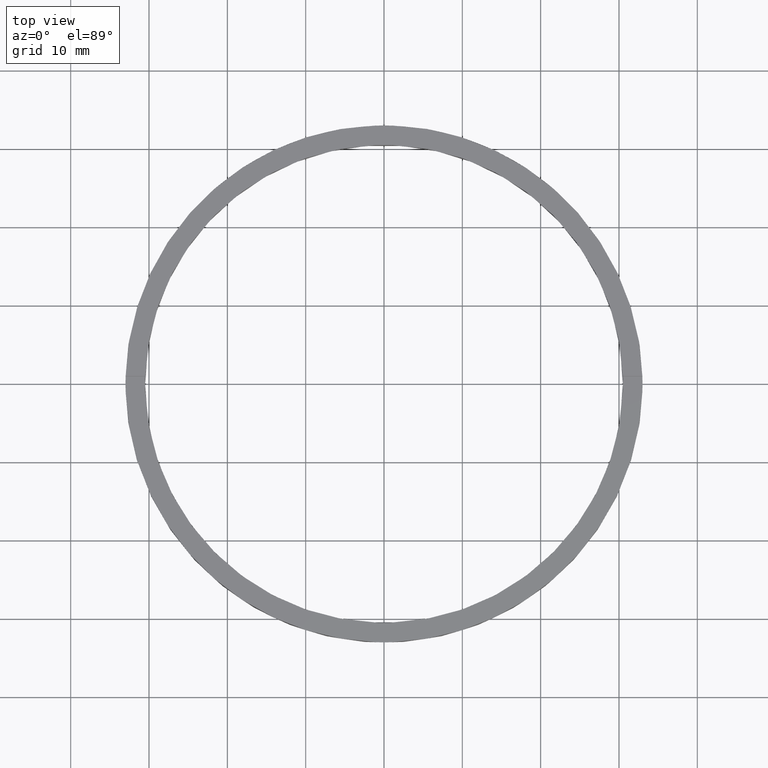
[diagram: clean part render]
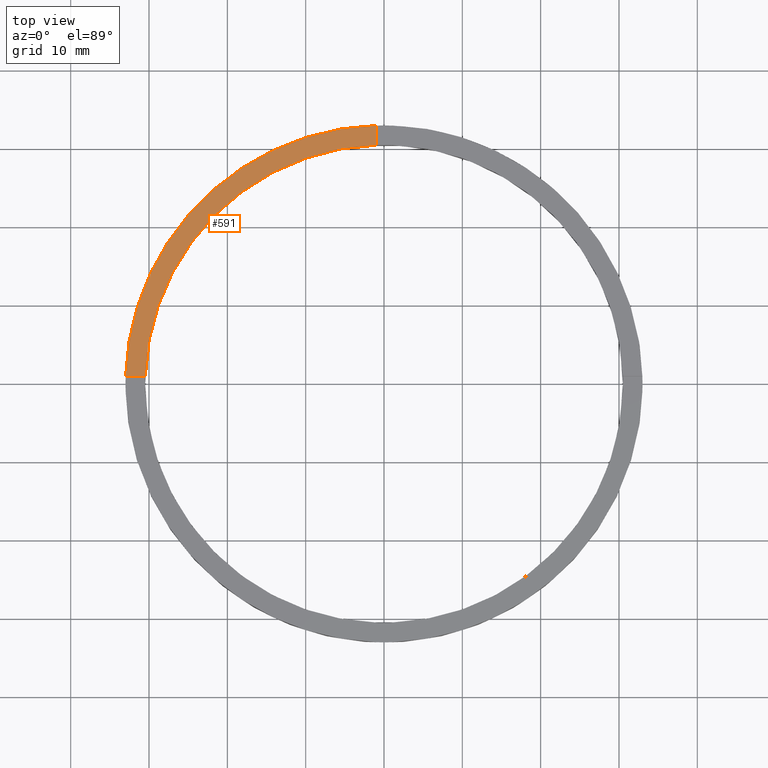
[diagram: same view with one face highlighted and labeled with its STEP entity id]
A machine part, top view. The second image highlights one B-rep face of the part: STEP entity #591.
In plain terms, the highlighted planar face has unit normal (0, 0, 1).
Its self-contained STEP definition (entity closure, byte-faithful):
#13 = CARTESIAN_POINT ( 'NONE',  ( -1.000000000000024647, 32.98484500494128469, 3.000000000000000000 ) ) ;
#19 = ORIENTED_EDGE ( 'NONE', *, *, #101, .T. ) ;
#37 = CARTESIAN_POINT ( 'NONE',  ( -1.000000000000024647, 30.48360214935236101, 3.000000000000000000 ) ) ;
#101 = EDGE_CURVE ( 'NONE', #352, #367, #393, .T. ) ;
#130 = AXIS2_PLACEMENT_3D ( 'NONE', #199, #480, #582 ) ;
#138 = CIRCLE ( 'NONE', #734, 30.50000000000000000 ) ;
#157 = LINE ( 'NONE', #182, #164 ) ;
#164 = VECTOR ( 'NONE', #754, 1000.000000000000000 ) ;
#182 = CARTESIAN_POINT ( 'NONE',  ( -23.00000000000018474, 0.9999999999999756861, 3.000000000000000000 ) ) ;
#184 = EDGE_CURVE ( 'NONE', #292, #218, #138, .T. ) ;
#194 = CARTESIAN_POINT ( 'NONE',  ( 0.000000000000000000, 0.000000000000000000, 3.000000000000000000 ) ) ;
#199 = CARTESIAN_POINT ( 'NONE',  ( 0.000000000000000000, 0.000000000000000000, 3.000000000000000000 ) ) ;
#202 = DIRECTION ( 'NONE',  ( -0.000000000000000000, -1.000000000000000000, -0.000000000000000000 ) ) ;
#217 = CARTESIAN_POINT ( 'NONE',  ( -32.98484500494129179, 0.9999999999999737987, 3.000000000000000000 ) ) ;
#218 = VERTEX_POINT ( 'NONE', #473 ) ;
#234 = CARTESIAN_POINT ( 'NONE',  ( -1.000000000000024647, 23.00000000000000000, 3.000000000000000000 ) ) ;
#292 = VERTEX_POINT ( 'NONE', #37 ) ;
#341 = PLANE ( 'NONE',  #130 ) ;
#352 = VERTEX_POINT ( 'NONE', #13 ) ;
#358 = AXIS2_PLACEMENT_3D ( 'NONE', #194, #715, #657 ) ;
#367 = VERTEX_POINT ( 'NONE', #217 ) ;
#368 = ORIENTED_EDGE ( 'NONE', *, *, #184, .F. ) ;
#387 = ORIENTED_EDGE ( 'NONE', *, *, #559, .F. ) ;
#393 = CIRCLE ( 'NONE', #358, 33.00000000000000000 ) ;
#423 = LINE ( 'NONE', #234, #676 ) ;
#427 = FACE_OUTER_BOUND ( 'NONE', #530, .T. ) ;
#473 = CARTESIAN_POINT ( 'NONE',  ( -30.48360214935236101, 0.9999999999999744649, 3.000000000000000000 ) ) ;
#480 = DIRECTION ( 'NONE',  ( 0.000000000000000000, 0.000000000000000000, 1.000000000000000000 ) ) ;
#530 = EDGE_LOOP ( 'NONE', ( #592, #19, #387, #368 ) ) ;
#559 = EDGE_CURVE ( 'NONE', #218, #367, #157, .T. ) ;
#578 = DIRECTION ( 'NONE',  ( 0.000000000000000000, 0.000000000000000000, 1.000000000000000000 ) ) ;
#582 = DIRECTION ( 'NONE',  ( 1.000000000000000000, 0.000000000000000000, -0.000000000000000000 ) ) ;
#591 = ADVANCED_FACE ( 'NONE', ( #427 ), #341, .T. ) ;
#592 = ORIENTED_EDGE ( 'NONE', *, *, #778, .F. ) ;
#657 = DIRECTION ( 'NONE',  ( 1.000000000000000000, 0.000000000000000000, 0.000000000000000000 ) ) ;
#676 = VECTOR ( 'NONE', #202, 1000.000000000000000 ) ;
#715 = DIRECTION ( 'NONE',  ( 0.000000000000000000, 0.000000000000000000, 1.000000000000000000 ) ) ;
#733 = CARTESIAN_POINT ( 'NONE',  ( 0.000000000000000000, 0.000000000000000000, 3.000000000000000000 ) ) ;
#734 = AXIS2_PLACEMENT_3D ( 'NONE', #733, #578, #768 ) ;
#754 = DIRECTION ( 'NONE',  ( -1.000000000000000000, -1.951563910473908228E-16, 0.000000000000000000 ) ) ;
#768 = DIRECTION ( 'NONE',  ( 1.000000000000000000, 0.000000000000000000, 0.000000000000000000 ) ) ;
#778 = EDGE_CURVE ( 'NONE', #352, #292, #423, .T. ) ;